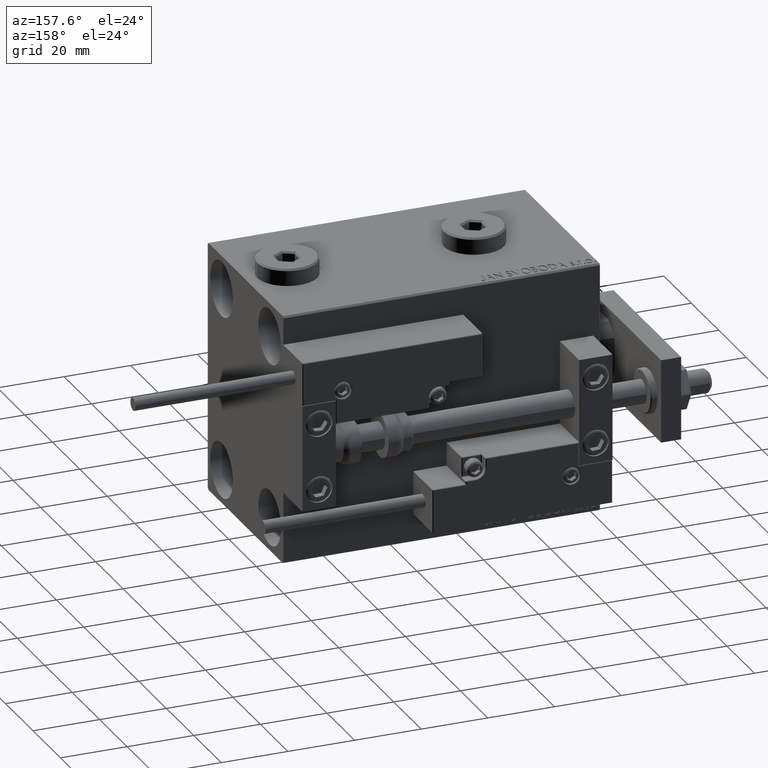
[diagram: clean part render]
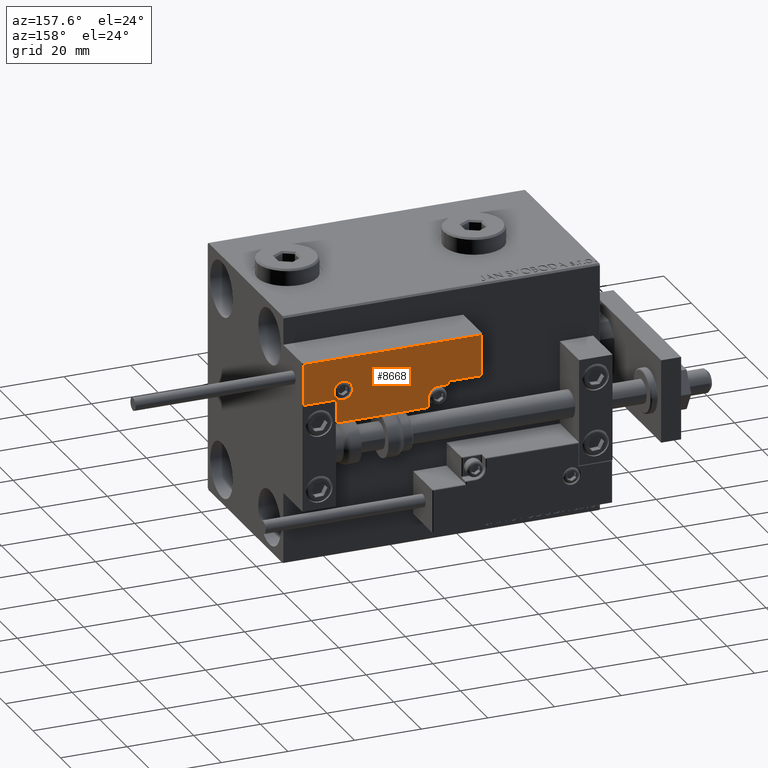
[diagram: same view with one face highlighted and labeled with its STEP entity id]
A machine part, auxiliary view. The second image highlights one B-rep face of the part: STEP entity #8668.
In plain terms, the highlighted planar face has unit normal (0, 1, -0).
Its self-contained STEP definition (entity closure, byte-faithful):
#1863 = EDGE_LOOP ( 'NONE', ( #37013, #47709 ) ) ;
#2362 = AXIS2_PLACEMENT_3D ( 'NONE', #23225, #39108, #50816 ) ;
#2669 = ORIENTED_EDGE ( 'NONE', *, *, #17408, .T. ) ;
#3033 = VECTOR ( 'NONE', #25192, 1000.000000000000000 ) ;
#3435 = LINE ( 'NONE', #15709, #3762 ) ;
#3731 = LINE ( 'NONE', #48030, #33560 ) ;
#3762 = VECTOR ( 'NONE', #23525, 1000.000000000000000 ) ;
#4015 = EDGE_CURVE ( 'NONE', #19880, #18735, #10610, .T. ) ;
#4185 = DIRECTION ( 'NONE',  ( 0.000000000000000000, 1.000000000000000000, -0.000000000000000000 ) ) ;
#4523 = VERTEX_POINT ( 'NONE', #15768 ) ;
#4761 = CARTESIAN_POINT ( 'NONE',  ( 0.000000000000000000, 0.000000000000000000, 14.00000000000000000 ) ) ;
#5042 = VERTEX_POINT ( 'NONE', #38758 ) ;
#5635 = EDGE_CURVE ( 'NONE', #4523, #22232, #25127, .T. ) ;
#7573 = CIRCLE ( 'NONE', #30000, 2.800000000000000266 ) ;
#7745 = AXIS2_PLACEMENT_3D ( 'NONE', #4761, #27990, #20666 ) ;
#8592 = EDGE_CURVE ( 'NONE', #19651, #14610, #3731, .T. ) ;
#8668 = ADVANCED_FACE ( 'NONE', ( #15990, #31883 ), #47763, .T. ) ;
#8879 = CARTESIAN_POINT ( 'NONE',  ( 17.00000000000000000, 6.300000000000003375, 14.00000000000000000 ) ) ;
#9025 = LINE ( 'NONE', #13205, #11849 ) ;
#9332 = LINE ( 'NONE', #49197, #12058 ) ;
#10040 = VECTOR ( 'NONE', #13499, 1000.000000000000000 ) ;
#10610 = LINE ( 'NONE', #37725, #10040 ) ;
#10622 = CARTESIAN_POINT ( 'NONE',  ( -17.59999999999994813, 9.800000000000004263, 14.00000000000000000 ) ) ;
#11511 = LINE ( 'NONE', #23760, #22095 ) ;
#11849 = VECTOR ( 'NONE', #24933, 1000.000000000000000 ) ;
#12058 = VECTOR ( 'NONE', #13764, 1000.000000000000000 ) ;
#12583 = CARTESIAN_POINT ( 'NONE',  ( 10.69999999999999929, 3.000000000000003109, 14.00000000000000000 ) ) ;
#12723 = AXIS2_PLACEMENT_3D ( 'NONE', #23159, #38518, #26026 ) ;
#13200 = EDGE_CURVE ( 'NONE', #14610, #31514, #29455, .T. ) ;
#13205 = CARTESIAN_POINT ( 'NONE',  ( -26.99999999999993605, 19.70000000000002061, 14.00000000000000000 ) ) ;
#13499 = DIRECTION ( 'NONE',  ( 1.000000000000000000, -1.734723475976815230E-16, 0.000000000000000000 ) ) ;
#13764 = DIRECTION ( 'NONE',  ( 1.000000000000000000, -0.000000000000000000, 0.000000000000000000 ) ) ;
#14393 = EDGE_CURVE ( 'NONE', #31514, #5042, #11511, .T. ) ;
#14498 = DIRECTION ( 'NONE',  ( 1.000000000000000000, 0.000000000000000000, 0.000000000000000000 ) ) ;
#14610 = VERTEX_POINT ( 'NONE', #22386 ) ;
#14801 = CARTESIAN_POINT ( 'NONE',  ( -26.69999999999993534, 19.70000000000002061, 14.00000000000000000 ) ) ;
#15366 = ORIENTED_EDGE ( 'NONE', *, *, #24738, .T. ) ;
#15709 = CARTESIAN_POINT ( 'NONE',  ( -26.69999999999994600, 7.000000000000005329, 14.00000000000000000 ) ) ;
#15768 = CARTESIAN_POINT ( 'NONE',  ( 10.69999999999999929, 0.3000000000000032085, 14.00000000000000000 ) ) ;
#15990 = FACE_BOUND ( 'NONE', #1863, .T. ) ;
#16251 = DIRECTION ( 'NONE',  ( 9.912705577010318647E-16, 1.000000000000000000, 0.000000000000000000 ) ) ;
#16565 = ORIENTED_EDGE ( 'NONE', *, *, #34453, .T. ) ;
#16902 = ORIENTED_EDGE ( 'NONE', *, *, #43508, .T. ) ;
#17147 = ORIENTED_EDGE ( 'NONE', *, *, #44773, .T. ) ;
#17408 = EDGE_CURVE ( 'NONE', #18025, #19880, #3435, .T. ) ;
#17480 = ORIENTED_EDGE ( 'NONE', *, *, #14393, .T. ) ;
#17950 = VERTEX_POINT ( 'NONE', #10622 ) ;
#18025 = VERTEX_POINT ( 'NONE', #14801 ) ;
#18735 = VERTEX_POINT ( 'NONE', #40592 ) ;
#18931 = DIRECTION ( 'NONE',  ( 0.000000000000000000, -0.000000000000000000, -1.000000000000000000 ) ) ;
#19247 = CARTESIAN_POINT ( 'NONE',  ( 26.70000000000006324, 7.300000000000007816, 14.00000000000000000 ) ) ;
#19651 = VERTEX_POINT ( 'NONE', #30545 ) ;
#19880 = VERTEX_POINT ( 'NONE', #29722 ) ;
#20342 = VECTOR ( 'NONE', #24794, 1000.000000000000000 ) ;
#20666 = DIRECTION ( 'NONE',  ( 1.000000000000000000, 0.000000000000000000, 0.000000000000000000 ) ) ;
#20790 = CARTESIAN_POINT ( 'NONE',  ( -16.69999999999999218, 0.3000000000000032085, 14.00000000000000000 ) ) ;
#21526 = EDGE_CURVE ( 'NONE', #18735, #50543, #29351, .T. ) ;
#22095 = VECTOR ( 'NONE', #4185, 1000.000000000000000 ) ;
#22194 = EDGE_LOOP ( 'NONE', ( #32791, #17147, #46604, #15366, #16902, #49568, #28058, #17480, #16565, #2669, #37280 ) ) ;
#22232 = VERTEX_POINT ( 'NONE', #12583 ) ;
#22386 = CARTESIAN_POINT ( 'NONE',  ( 16.69999999999999929, 7.300000000000009592, 14.00000000000000000 ) ) ;
#22485 = CARTESIAN_POINT ( 'NONE',  ( 10.69999999999999929, 3.000000000000003109, 14.00000000000000000 ) ) ;
#23021 = DIRECTION ( 'NONE',  ( -0.000000000000000000, 1.000000000000000000, -0.000000000000000000 ) ) ;
#23159 = CARTESIAN_POINT ( 'NONE',  ( -14.79999999999994920, 9.800000000000004263, 14.00000000000000000 ) ) ;
#23225 = CARTESIAN_POINT ( 'NONE',  ( 13.99999999999999822, 3.000000000000002665, 14.00000000000000000 ) ) ;
#23525 = DIRECTION ( 'NONE',  ( -8.006416042969869188E-16, -1.000000000000000000, 0.000000000000000000 ) ) ;
#23760 = CARTESIAN_POINT ( 'NONE',  ( 26.70000000000006324, 20.00000000000001776, 14.00000000000000000 ) ) ;
#24093 = CARTESIAN_POINT ( 'NONE',  ( -14.79999999999994920, 9.800000000000004263, 14.00000000000000000 ) ) ;
#24738 = EDGE_CURVE ( 'NONE', #22232, #41994, #27366, .T. ) ;
#24794 = DIRECTION ( 'NONE',  ( 1.000000000000000000, 5.782411586589357639E-16, -0.000000000000000000 ) ) ;
#24933 = DIRECTION ( 'NONE',  ( -1.000000000000000000, 6.424901762877063495E-17, -0.000000000000000000 ) ) ;
#25127 = LINE ( 'NONE', #22485, #37619 ) ;
#25192 = DIRECTION ( 'NONE',  ( 0.000000000000000000, -1.000000000000000000, 0.000000000000000000 ) ) ;
#26026 = DIRECTION ( 'NONE',  ( 1.000000000000000000, 0.000000000000000000, 0.000000000000000000 ) ) ;
#26057 = DIRECTION ( 'NONE',  ( 1.000000000000000000, -1.734723475976796001E-16, 0.000000000000000000 ) ) ;
#27073 = VECTOR ( 'NONE', #26057, 1000.000000000000000 ) ;
#27366 = CIRCLE ( 'NONE', #2362, 3.299999999999997158 ) ;
#27990 = DIRECTION ( 'NONE',  ( -0.000000000000000000, 0.000000000000000000, 1.000000000000000000 ) ) ;
#28058 = ORIENTED_EDGE ( 'NONE', *, *, #13200, .T. ) ;
#29351 = LINE ( 'NONE', #49643, #3033 ) ;
#29455 = LINE ( 'NONE', #45337, #27073 ) ;
#29722 = CARTESIAN_POINT ( 'NONE',  ( -26.69999999999994600, 7.300000000000005151, 14.00000000000000000 ) ) ;
#30000 = AXIS2_PLACEMENT_3D ( 'NONE', #24093, #18931, #14498 ) ;
#30545 = CARTESIAN_POINT ( 'NONE',  ( 16.69999999999999929, 6.300000000000003375, 14.00000000000000000 ) ) ;
#31514 = VERTEX_POINT ( 'NONE', #19247 ) ;
#31825 = EDGE_CURVE ( 'NONE', #17950, #35945, #7573, .T. ) ;
#31883 = FACE_OUTER_BOUND ( 'NONE', #22194, .T. ) ;
#32791 = ORIENTED_EDGE ( 'NONE', *, *, #21526, .T. ) ;
#33560 = VECTOR ( 'NONE', #16251, 1000.000000000000000 ) ;
#34453 = EDGE_CURVE ( 'NONE', #5042, #18025, #9025, .T. ) ;
#35945 = VERTEX_POINT ( 'NONE', #37123 ) ;
#37013 = ORIENTED_EDGE ( 'NONE', *, *, #38906, .T. ) ;
#37123 = CARTESIAN_POINT ( 'NONE',  ( -11.99999999999994849, 9.800000000000004263, 14.00000000000000000 ) ) ;
#37280 = ORIENTED_EDGE ( 'NONE', *, *, #4015, .T. ) ;
#37619 = VECTOR ( 'NONE', #23021, 1000.000000000000000 ) ;
#37725 = CARTESIAN_POINT ( 'NONE',  ( -16.99999999999999289, 7.300000000000003375, 14.00000000000000000 ) ) ;
#38518 = DIRECTION ( 'NONE',  ( 0.000000000000000000, -0.000000000000000000, -1.000000000000000000 ) ) ;
#38758 = CARTESIAN_POINT ( 'NONE',  ( 26.70000000000006324, 19.70000000000001705, 14.00000000000000000 ) ) ;
#38906 = EDGE_CURVE ( 'NONE', #35945, #17950, #45251, .T. ) ;
#39108 = DIRECTION ( 'NONE',  ( 0.000000000000000000, -0.000000000000000000, -1.000000000000000000 ) ) ;
#40592 = CARTESIAN_POINT ( 'NONE',  ( -16.69999999999999218, 7.300000000000003375, 14.00000000000000000 ) ) ;
#41994 = VERTEX_POINT ( 'NONE', #47913 ) ;
#43508 = EDGE_CURVE ( 'NONE', #41994, #19651, #47721, .T. ) ;
#44773 = EDGE_CURVE ( 'NONE', #50543, #4523, #9332, .T. ) ;
#45251 = CIRCLE ( 'NONE', #12723, 2.800000000000000266 ) ;
#45337 = CARTESIAN_POINT ( 'NONE',  ( 27.00000000000006395, 7.300000000000007816, 14.00000000000000000 ) ) ;
#46604 = ORIENTED_EDGE ( 'NONE', *, *, #5635, .T. ) ;
#47709 = ORIENTED_EDGE ( 'NONE', *, *, #31825, .T. ) ;
#47721 = LINE ( 'NONE', #8879, #20342 ) ;
#47763 = PLANE ( 'NONE',  #7745 ) ;
#47913 = CARTESIAN_POINT ( 'NONE',  ( 13.99999999999999822, 6.300000000000001599, 14.00000000000000000 ) ) ;
#48030 = CARTESIAN_POINT ( 'NONE',  ( 16.69999999999999929, 7.000000000000009770, 14.00000000000000000 ) ) ;
#49197 = CARTESIAN_POINT ( 'NONE',  ( 11.00000000000000000, 0.3000000000000032085, 14.00000000000000000 ) ) ;
#49568 = ORIENTED_EDGE ( 'NONE', *, *, #8592, .T. ) ;
#49643 = CARTESIAN_POINT ( 'NONE',  ( -16.69999999999999218, 3.252606517456513302E-15, 14.00000000000000000 ) ) ;
#50543 = VERTEX_POINT ( 'NONE', #20790 ) ;
#50816 = DIRECTION ( 'NONE',  ( 1.000000000000000000, 0.000000000000000000, 0.000000000000000000 ) ) ;